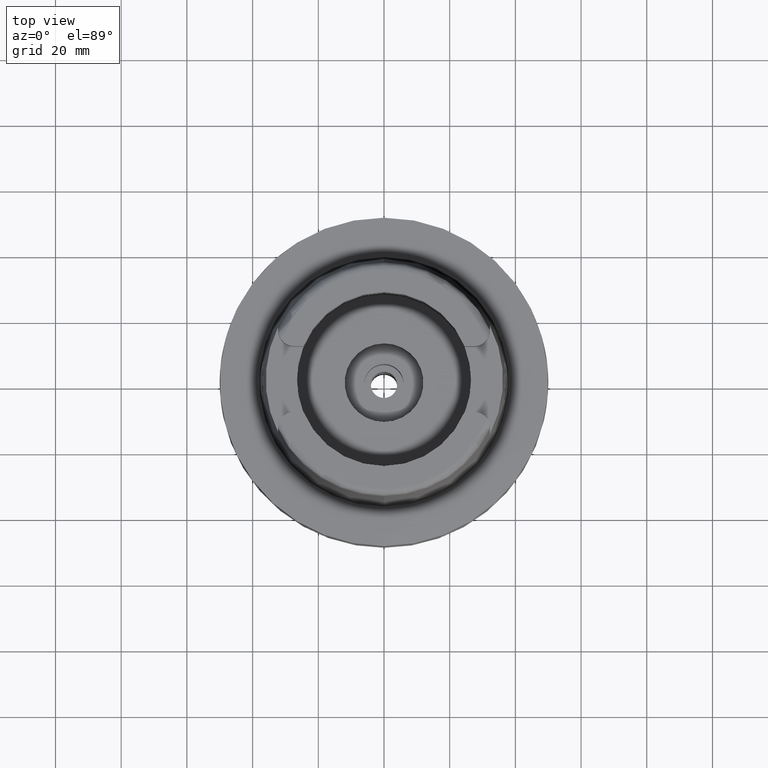
[diagram: clean part render]
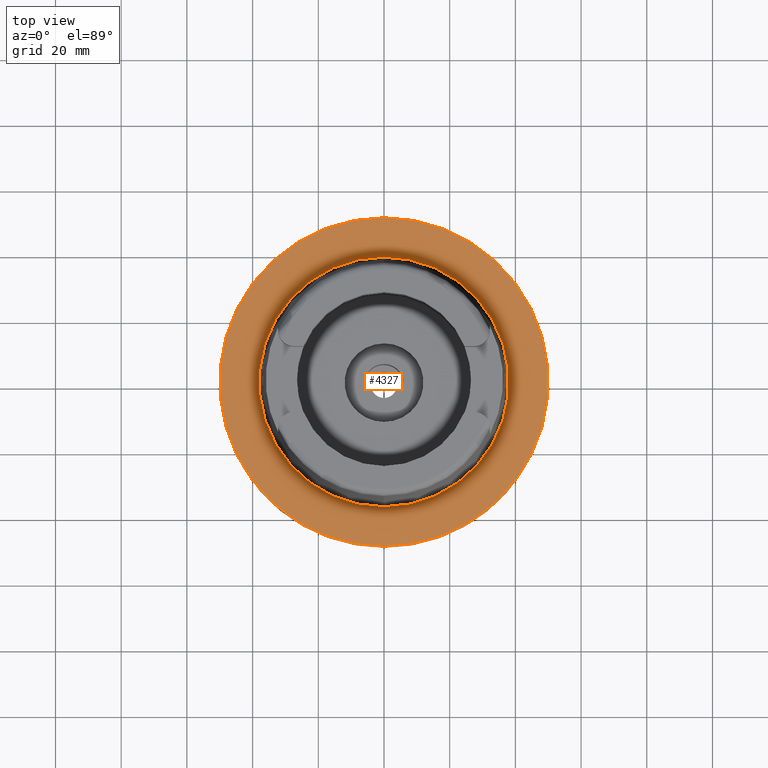
[diagram: same view with one face highlighted and labeled with its STEP entity id]
A machine part, top view. The second image highlights one B-rep face of the part: STEP entity #4327.
In plain terms, the highlighted planar face has unit normal (0, 0, 1).
Its self-contained STEP definition (entity closure, byte-faithful):
#2052=CARTESIAN_POINT('',(0.E0,0.E0,3.410605131648E-13));
#2053=DIRECTION('',(0.E0,0.E0,-1.E0));
#2054=DIRECTION('',(0.E0,-1.E0,0.E0));
#2055=AXIS2_PLACEMENT_3D('',#2052,#2053,#2054);
#2060=CARTESIAN_POINT('',(0.E0,0.E0,3.410605131648E-13));
#2061=DIRECTION('',(0.E0,0.E0,-1.E0));
#2062=DIRECTION('',(0.E0,1.E0,0.E0));
#2063=AXIS2_PLACEMENT_3D('',#2060,#2061,#2062);
#2068=CARTESIAN_POINT('',(0.E0,0.E0,1.023181539495E-12));
#2069=DIRECTION('',(0.E0,0.E0,1.E0));
#2070=DIRECTION('',(0.E0,-1.E0,0.E0));
#2071=AXIS2_PLACEMENT_3D('',#2068,#2069,#2070);
#2076=CARTESIAN_POINT('',(0.E0,0.E0,1.023181539495E-12));
#2077=DIRECTION('',(0.E0,0.E0,1.E0));
#2078=DIRECTION('',(0.E0,1.E0,0.E0));
#2079=AXIS2_PLACEMENT_3D('',#2076,#2077,#2078);
#2516=CARTESIAN_POINT('',(0.E0,-3.800001658252E1,6.821210263297E-13));
#2517=VERTEX_POINT('',#2516);
#2518=CARTESIAN_POINT('',(0.E0,3.800001658252E1,1.023181539495E-12));
#2519=VERTEX_POINT('',#2518);
#2785=CARTESIAN_POINT('',(0.E0,5.E1,2.084258691563E-13));
#2786=VERTEX_POINT('',#2785);
#2787=CARTESIAN_POINT('',(0.E0,-5.E1,3.410605131648E-13));
#2788=VERTEX_POINT('',#2787);
#4314=CARTESIAN_POINT('',(0.E0,0.E0,0.E0));
#4315=DIRECTION('',(0.E0,0.E0,1.E0));
#4316=DIRECTION('',(0.E0,1.E0,0.E0));
#4317=AXIS2_PLACEMENT_3D('',#4314,#4315,#4316);
#4318=PLANE('',#4317);
#4319=ORIENTED_EDGE('',*,*,#4079,.T.);
#4320=ORIENTED_EDGE('',*,*,#4188,.T.);
#4321=EDGE_LOOP('',(#4319,#4320));
#4322=FACE_OUTER_BOUND('',#4321,.F.);
#4323=ORIENTED_EDGE('',*,*,#3039,.T.);
#4324=ORIENTED_EDGE('',*,*,#3010,.T.);
#4325=EDGE_LOOP('',(#4323,#4324));
#4326=FACE_BOUND('',#4325,.F.);
#2056=CIRCLE('',#2055,5.E1);
#2064=CIRCLE('',#2063,5.E1);
#2072=CIRCLE('',#2071,3.800001658252E1);
#2080=CIRCLE('',#2079,3.800001658252E1);
#3010=EDGE_CURVE('',#2519,#2517,#2080,.T.);
#3039=EDGE_CURVE('',#2517,#2519,#2072,.T.);
#4079=EDGE_CURVE('',#2788,#2786,#2056,.T.);
#4188=EDGE_CURVE('',#2786,#2788,#2064,.T.);
#4327=ADVANCED_FACE('',(#4322,#4326),#4318,.T.);